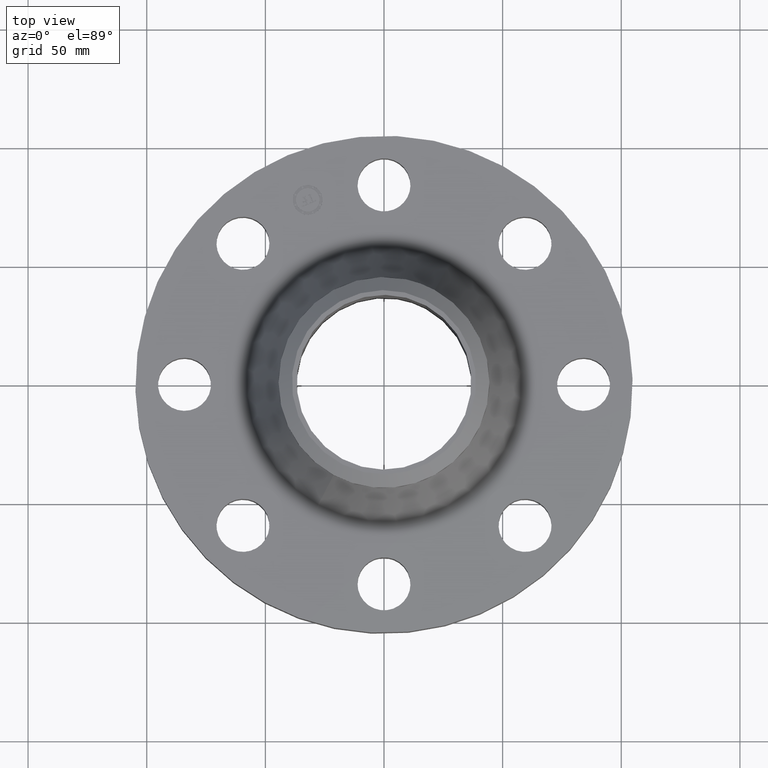
[diagram: clean part render]
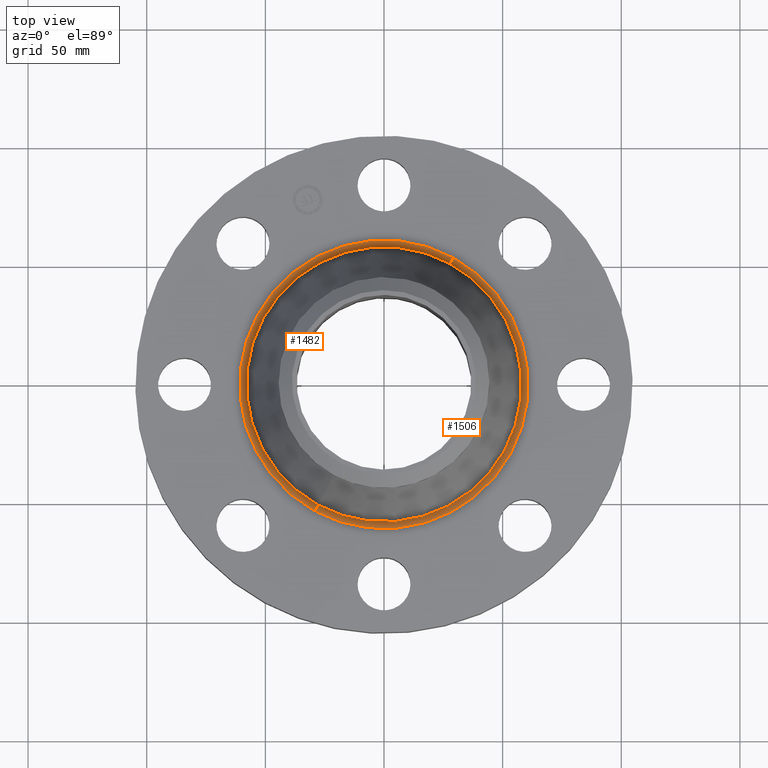
[diagram: same view with one multi-face feature highlighted, each face labeled with its STEP entity id]
A machine part, top view. The highlighted faces form ONE feature: a constant-radius fillet chain: 2 tangent blend faces with common blend radius 3.048 mm. The faces share edges in the B-rep.
Their STEP definitions:
[1] entity #1506 (Torus):
#483=AXIS2_PLACEMENT_3D('Circle Axis2P3D',#481,#482,$) ;
#1459=AXIS2_PLACEMENT_3D('Circle Axis2P3D',#1457,#1458,$) ;
#1473=AXIS2_PLACEMENT_3D('Circle Axis2P3D',#1471,#1472,$) ;
#1493=AXIS2_PLACEMENT_3D('Torus Axis2P3D',#1490,#1491,#1492) ;
#1497=AXIS2_PLACEMENT_3D('Circle Axis2P3D',#1495,#1496,$) ;
#476=CARTESIAN_POINT('Vertex',(-1.1482394859,-2.10183828053,1.06)) ;
#478=CARTESIAN_POINT('Vertex',(1.1482394859,2.10183828052,1.06)) ;
#481=CARTESIAN_POINT('Axis2P3D Location',(0.,5.33410586042E-012,1.06)) ;
#1457=CARTESIAN_POINT('Axis2P3D Location',(-1.1482394859,-2.10183828053,1.18)) ;
#1461=CARTESIAN_POINT('Vertex',(-1.09396064071,-2.00248152086,1.14022511755)) ;
#1468=CARTESIAN_POINT('Vertex',(1.09396064071,2.00248152086,1.14022511755)) ;
#1471=CARTESIAN_POINT('Axis2P3D Location',(1.1482394859,2.10183828053,1.18)) ;
#1490=CARTESIAN_POINT('Axis2P3D Location',(0.,0.,1.18)) ;
#1495=CARTESIAN_POINT('Axis2P3D Location',(0.,0.,1.14022511755)) ;
#482=DIRECTION('Axis2P3D Direction',(0.,0.,-0.0393700787402)) ;
#1458=DIRECTION('Axis2P3D Direction',(0.0345504945626,-0.0188750212049,0.)) ;
#1472=DIRECTION('Axis2P3D Direction',(-0.0345504945626,0.0188750212049,0.)) ;
#1491=DIRECTION('Axis2P3D Direction',(0.,0.,-0.0393700787402)) ;
#1492=DIRECTION('Axis2P3D XDirection',(0.0188750212049,0.0345504945626,0.)) ;
#1496=DIRECTION('Axis2P3D Direction',(-0.,0.,-0.0393700787402)) ;
#1501=ORIENTED_EDGE('',*,*,#485,.F.) ;
#1502=ORIENTED_EDGE('',*,*,#1475,.T.) ;
#1503=ORIENTED_EDGE('',*,*,#1499,.T.) ;
#1504=ORIENTED_EDGE('',*,*,#1463,.F.) ;
#1506=ADVANCED_FACE('PartBody',(#1505),#1494,.F.) ;
#484=CIRCLE('generated circle',#483,2.39503195686) ;
#1460=CIRCLE('generated circle',#1459,0.12) ;
#1474=CIRCLE('generated circle',#1473,0.12) ;
#1498=CIRCLE('generated circle',#1497,2.2818155326) ;
#1494=TOROIDAL_SURFACE('homeo Torus',#1493,2.39503195688,0.12) ;
#485=EDGE_CURVE('',#479,#477,#484,.T.) ;
#1463=EDGE_CURVE('',#477,#1462,#1460,.T.) ;
#1475=EDGE_CURVE('',#479,#1469,#1474,.T.) ;
#1499=EDGE_CURVE('',#1469,#1462,#1498,.T.) ;
#1500=EDGE_LOOP('',(#1501,#1502,#1503,#1504)) ;
#1505=FACE_OUTER_BOUND('',#1500,.T.) ;
#477=VERTEX_POINT('',#476) ;
#479=VERTEX_POINT('',#478) ;
#1462=VERTEX_POINT('',#1461) ;
#1469=VERTEX_POINT('',#1468) ;
[2] entity #1482 (Torus):
#474=AXIS2_PLACEMENT_3D('Circle Axis2P3D',#472,#473,$) ;
#1455=AXIS2_PLACEMENT_3D('Torus Axis2P3D',#1452,#1453,#1454) ;
#1459=AXIS2_PLACEMENT_3D('Circle Axis2P3D',#1457,#1458,$) ;
#1466=AXIS2_PLACEMENT_3D('Circle Axis2P3D',#1464,#1465,$) ;
#1473=AXIS2_PLACEMENT_3D('Circle Axis2P3D',#1471,#1472,$) ;
#472=CARTESIAN_POINT('Axis2P3D Location',(0.,5.33410586042E-012,1.06)) ;
#476=CARTESIAN_POINT('Vertex',(-1.1482394859,-2.10183828053,1.06)) ;
#478=CARTESIAN_POINT('Vertex',(1.1482394859,2.10183828052,1.06)) ;
#1452=CARTESIAN_POINT('Axis2P3D Location',(0.,0.,1.18)) ;
#1457=CARTESIAN_POINT('Axis2P3D Location',(-1.1482394859,-2.10183828053,1.18)) ;
#1461=CARTESIAN_POINT('Vertex',(-1.09396064071,-2.00248152086,1.14022511755)) ;
#1464=CARTESIAN_POINT('Axis2P3D Location',(0.,0.,1.14022511755)) ;
#1468=CARTESIAN_POINT('Vertex',(1.09396064071,2.00248152086,1.14022511755)) ;
#1471=CARTESIAN_POINT('Axis2P3D Location',(1.1482394859,2.10183828053,1.18)) ;
#473=DIRECTION('Axis2P3D Direction',(0.,0.,-0.0393700787402)) ;
#1453=DIRECTION('Axis2P3D Direction',(0.,0.,-0.0393700787402)) ;
#1454=DIRECTION('Axis2P3D XDirection',(-0.0188750212049,-0.0345504945626,0.)) ;
#1458=DIRECTION('Axis2P3D Direction',(0.0345504945626,-0.0188750212049,0.)) ;
#1465=DIRECTION('Axis2P3D Direction',(-0.,0.,-0.0393700787402)) ;
#1472=DIRECTION('Axis2P3D Direction',(-0.0345504945626,0.0188750212049,0.)) ;
#1477=ORIENTED_EDGE('',*,*,#480,.F.) ;
#1478=ORIENTED_EDGE('',*,*,#1463,.T.) ;
#1479=ORIENTED_EDGE('',*,*,#1470,.T.) ;
#1480=ORIENTED_EDGE('',*,*,#1475,.F.) ;
#1482=ADVANCED_FACE('PartBody',(#1481),#1456,.F.) ;
#475=CIRCLE('generated circle',#474,2.39503195686) ;
#1460=CIRCLE('generated circle',#1459,0.12) ;
#1467=CIRCLE('generated circle',#1466,2.2818155326) ;
#1474=CIRCLE('generated circle',#1473,0.12) ;
#1456=TOROIDAL_SURFACE('homeo Torus',#1455,2.39503195688,0.12) ;
#480=EDGE_CURVE('',#477,#479,#475,.T.) ;
#1463=EDGE_CURVE('',#477,#1462,#1460,.T.) ;
#1470=EDGE_CURVE('',#1462,#1469,#1467,.T.) ;
#1475=EDGE_CURVE('',#479,#1469,#1474,.T.) ;
#1476=EDGE_LOOP('',(#1477,#1478,#1479,#1480)) ;
#1481=FACE_OUTER_BOUND('',#1476,.T.) ;
#477=VERTEX_POINT('',#476) ;
#479=VERTEX_POINT('',#478) ;
#1462=VERTEX_POINT('',#1461) ;
#1469=VERTEX_POINT('',#1468) ;